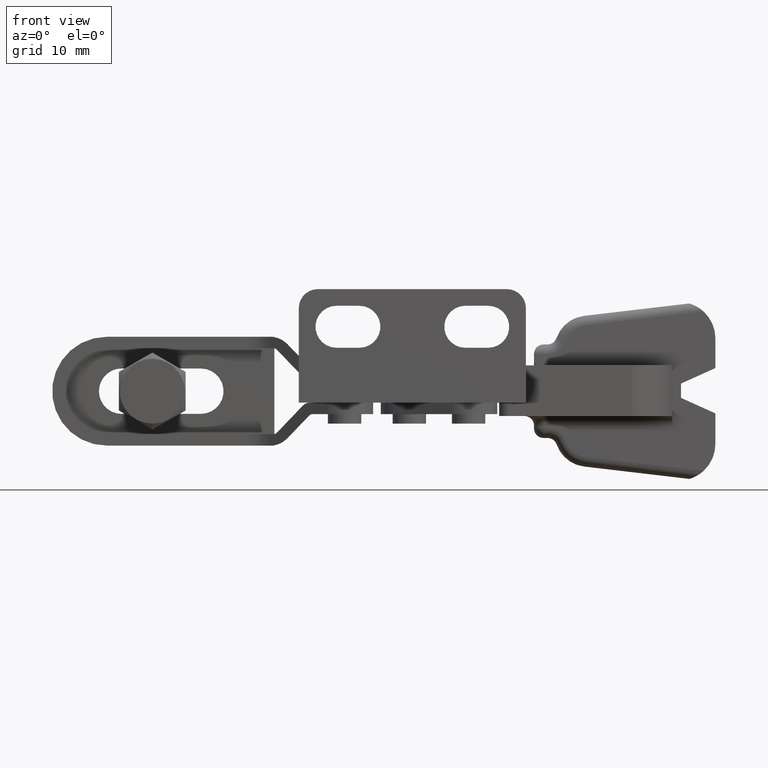
[diagram: clean part render]
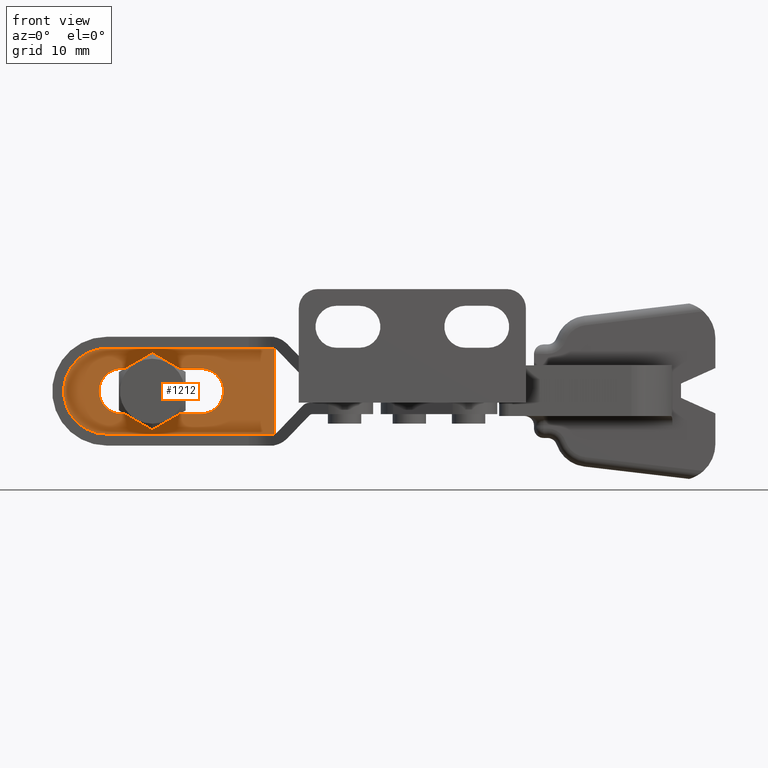
[diagram: same view with one face highlighted and labeled with its STEP entity id]
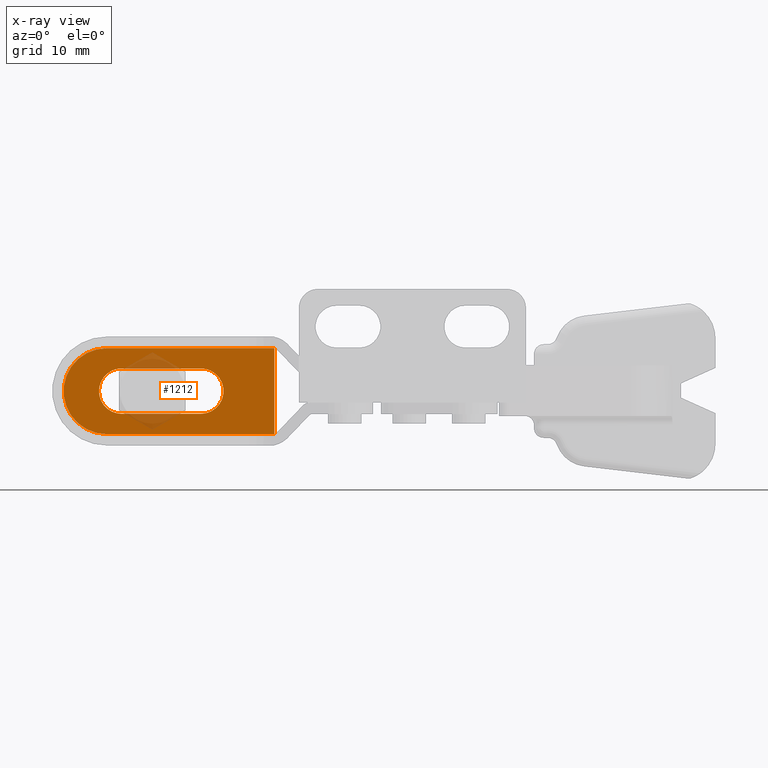
[diagram: x-ray of the same camera — body ghosted, the highlighted face saturated]
A machine part, front view. The second image highlights one B-rep face of the part: STEP entity #1212.
The next image is the same camera in x-ray: the body ghosted, the highlighted face saturated — about 7% of this face is hidden behind the body in this view.
In plain terms, the highlighted planar face has unit normal (0, -1, 0).
Its self-contained STEP definition (entity closure, byte-faithful):
#294 = VECTOR ( 'NONE', #1500, 1000.000000000000000 ) ;
#354 = VERTEX_POINT ( 'NONE', #4485 ) ;
#637 = CIRCLE ( 'NONE', #5633, 2.380000000000000300 ) ;
#687 = EDGE_CURVE ( 'NONE', #5184, #9603, #4522, .T. ) ;
#764 = VERTEX_POINT ( 'NONE', #8551 ) ;
#860 = DIRECTION ( 'NONE',  ( -1.000000000000000000, 0.0000000000000000000, 1.984105999332369700E-016 ) ) ;
#869 = CARTESIAN_POINT ( 'NONE',  ( -20.14000145548620300, 17.30000245742332200, -4.499999999998711300 ) ) ;
#1211 = CARTESIAN_POINT ( 'NONE',  ( -2.653803877730544200, 17.30000245742332200, -4.499999999998714800 ) ) ;
#1212 = ADVANCED_FACE ( 'NONE', ( #6039, #7971 ), #4010, .T. ) ;
#1297 = EDGE_CURVE ( 'NONE', #6664, #8710, #7029, .T. ) ;
#1371 = EDGE_CURVE ( 'NONE', #8710, #5184, #6855, .T. ) ;
#1395 = CARTESIAN_POINT ( 'NONE',  ( -13.98654398031854000, 17.30000245742332200, -2.380000000000000300 ) ) ;
#1413 = CARTESIAN_POINT ( 'NONE',  ( -2.653803877728941400, 17.30000245742332200, 4.499999999998713000 ) ) ;
#1500 = DIRECTION ( 'NONE',  ( 0.0000000000000000000, 0.0000000000000000000, 1.000000000000000000 ) ) ;
#1652 = ORIENTED_EDGE ( 'NONE', *, *, #4391, .F. ) ;
#1750 = ORIENTED_EDGE ( 'NONE', *, *, #1371, .F. ) ;
#1918 = ORIENTED_EDGE ( 'NONE', *, *, #9652, .T. ) ;
#2133 = VERTEX_POINT ( 'NONE', #4828 ) ;
#2204 = DIRECTION ( 'NONE',  ( -0.0000000000000000000, 1.000000000000000000, -0.0000000000000000000 ) ) ;
#2375 = LINE ( 'NONE', #6832, #294 ) ;
#2420 = VERTEX_POINT ( 'NONE', #3624 ) ;
#2670 = VECTOR ( 'NONE', #5254, 1000.000000000000000 ) ;
#2697 = EDGE_LOOP ( 'NONE', ( #7431, #1750, #9007, #9213, #5438, #1918 ) ) ;
#2850 = CARTESIAN_POINT ( 'NONE',  ( -18.56322818642262700, 17.30000245742331800, -2.380000000000000300 ) ) ;
#2859 = EDGE_CURVE ( 'NONE', #764, #9262, #637, .T. ) ;
#2958 = DIRECTION ( 'NONE',  ( 0.0000000000000000000, -1.000000000000000000, 0.0000000000000000000 ) ) ;
#3573 = EDGE_CURVE ( 'NONE', #2133, #2420, #9500, .T. ) ;
#3624 = CARTESIAN_POINT ( 'NONE',  ( -10.26322818642262500, 17.30000245742332200, 2.379999999999998600 ) ) ;
#3825 = EDGE_CURVE ( 'NONE', #354, #764, #7502, .T. ) ;
#3939 = DIRECTION ( 'NONE',  ( 0.0000000000000000000, 0.0000000000000000000, -1.000000000000000000 ) ) ;
#3952 = DIRECTION ( 'NONE',  ( 0.0000000000000000000, -1.000000000000000000, 0.0000000000000000000 ) ) ;
#3965 = CARTESIAN_POINT ( 'NONE',  ( -18.56322818642262700, 17.30000245742331800, 0.0000000000000000000 ) ) ;
#4004 = CARTESIAN_POINT ( 'NONE',  ( -20.14000145548620300, 17.30000245742332200, 4.499999999998716600 ) ) ;
#4010 = PLANE ( 'NONE',  #7952 ) ;
#4051 = EDGE_CURVE ( 'NONE', #8513, #6664, #5035, .T. ) ;
#4391 = EDGE_CURVE ( 'NONE', #9262, #2133, #8932, .T. ) ;
#4485 = CARTESIAN_POINT ( 'NONE',  ( -18.56322818642262700, 17.30000245742331800, 2.380000000000000300 ) ) ;
#4522 = CIRCLE ( 'NONE', #9497, 0.5000016941768495900 ) ;
#4534 = CARTESIAN_POINT ( 'NONE',  ( -20.14000145548620300, 17.30000245742332200, 4.499999999998716600 ) ) ;
#4708 = AXIS2_PLACEMENT_3D ( 'NONE', #3965, #3952, #3939 ) ;
#4775 = EDGE_LOOP ( 'NONE', ( #8916, #7187, #8032, #1652, #5310 ) ) ;
#4828 = CARTESIAN_POINT ( 'NONE',  ( -10.26322818642262600, 17.30000245742331400, -2.380000000000000300 ) ) ;
#4837 = CIRCLE ( 'NONE', #7963, 0.5000016941768487000 ) ;
#4910 = CARTESIAN_POINT ( 'NONE',  ( -18.56322818642262700, 17.30000245742331800, 0.0000000000000000000 ) ) ;
#4938 = VECTOR ( 'NONE', #860, 1000.000000000000000 ) ;
#5035 = LINE ( 'NONE', #869, #4938 ) ;
#5071 = CARTESIAN_POINT ( 'NONE',  ( -20.14000145548620300, 17.30000245742332200, -4.499999999998711300 ) ) ;
#5184 = VERTEX_POINT ( 'NONE', #1413 ) ;
#5254 = DIRECTION ( 'NONE',  ( 1.000000000000000000, 0.0000000000000000000, -1.984105999332187500E-016 ) ) ;
#5310 = ORIENTED_EDGE ( 'NONE', *, *, #2859, .F. ) ;
#5438 = ORIENTED_EDGE ( 'NONE', *, *, #9415, .F. ) ;
#5455 = DIRECTION ( 'NONE',  ( 0.0000000000000000000, -1.000000000000000000, 0.0000000000000000000 ) ) ;
#5490 = LINE ( 'NONE', #6671, #8254 ) ;
#5624 = VECTOR ( 'NONE', #8554, 1000.000000000000000 ) ;
#5633 = AXIS2_PLACEMENT_3D ( 'NONE', #4910, #5455, #8085 ) ;
#5661 = DIRECTION ( 'NONE',  ( 0.0000000000000000000, 0.0000000000000000000, -1.000000000000000000 ) ) ;
#5789 = CARTESIAN_POINT ( 'NONE',  ( -10.26322818642262600, 17.30000245742331800, 0.0000000000000000000 ) ) ;
#5889 = DIRECTION ( 'NONE',  ( 0.0000000000000000000, -1.000000000000000000, 0.0000000000000000000 ) ) ;
#6038 = AXIS2_PLACEMENT_3D ( 'NONE', #5789, #5889, #5661 ) ;
#6039 = FACE_BOUND ( 'NONE', #4775, .T. ) ;
#6159 = EDGE_CURVE ( 'NONE', #2420, #354, #5490, .T. ) ;
#6233 = AXIS2_PLACEMENT_3D ( 'NONE', #7791, #9505, #7193 ) ;
#6664 = VERTEX_POINT ( 'NONE', #5071 ) ;
#6671 = CARTESIAN_POINT ( 'NONE',  ( -13.98654398031854000, 17.30000245742332200, 2.379999999999998600 ) ) ;
#6702 = CARTESIAN_POINT ( 'NONE',  ( -2.563228186422624500, 17.30000245742332200, -4.491727640236449700 ) ) ;
#6767 = CARTESIAN_POINT ( 'NONE',  ( -2.653803877730544200, 17.30000245742332200, -3.999998305821864400 ) ) ;
#6832 = CARTESIAN_POINT ( 'NONE',  ( -2.563228186422624500, 17.30000245742332200, -5.699999999999998400 ) ) ;
#6855 = LINE ( 'NONE', #4534, #2670 ) ;
#7029 = CIRCLE ( 'NONE', #6233, 4.499999999998713900 ) ;
#7187 = ORIENTED_EDGE ( 'NONE', *, *, #6159, .F. ) ;
#7193 = DIRECTION ( 'NONE',  ( 0.0000000000000000000, 0.0000000000000000000, -1.000000000000000000 ) ) ;
#7391 = CARTESIAN_POINT ( 'NONE',  ( -2.653803877728941400, 17.30000245742332200, 3.999998305821864400 ) ) ;
#7406 = DIRECTION ( 'NONE',  ( -0.0000000000000000000, 1.000000000000000000, -0.0000000000000000000 ) ) ;
#7408 = DIRECTION ( 'NONE',  ( 0.0000000000000000000, 0.0000000000000000000, -1.000000000000000000 ) ) ;
#7431 = ORIENTED_EDGE ( 'NONE', *, *, #687, .F. ) ;
#7502 = CIRCLE ( 'NONE', #4708, 2.380000000000000300 ) ;
#7557 = DIRECTION ( 'NONE',  ( -4.163322235536046500E-014, 0.0000000000000000000, -1.000000000000000000 ) ) ;
#7652 = CARTESIAN_POINT ( 'NONE',  ( -13.98654398031854000, 17.30000245742332200, -5.699999999999998400 ) ) ;
#7696 = VERTEX_POINT ( 'NONE', #6702 ) ;
#7791 = CARTESIAN_POINT ( 'NONE',  ( -20.14000145548620300, 17.30000245742332200, 2.517818257012902300E-015 ) ) ;
#7952 = AXIS2_PLACEMENT_3D ( 'NONE', #7652, #2958, #8097 ) ;
#7963 = AXIS2_PLACEMENT_3D ( 'NONE', #6767, #2204, #7557 ) ;
#7971 = FACE_OUTER_BOUND ( 'NONE', #2697, .T. ) ;
#8032 = ORIENTED_EDGE ( 'NONE', *, *, #3573, .F. ) ;
#8085 = DIRECTION ( 'NONE',  ( 0.0000000000000000000, 0.0000000000000000000, -1.000000000000000000 ) ) ;
#8097 = DIRECTION ( 'NONE',  ( 0.0000000000000000000, -0.0000000000000000000, -1.000000000000000000 ) ) ;
#8254 = VECTOR ( 'NONE', #9680, 1000.000000000000000 ) ;
#8513 = VERTEX_POINT ( 'NONE', #1211 ) ;
#8551 = CARTESIAN_POINT ( 'NONE',  ( -20.94322818642263000, 17.30000245742331800, 0.0000000000000000000 ) ) ;
#8554 = DIRECTION ( 'NONE',  ( 1.000000000000000000, 0.0000000000000000000, 0.0000000000000000000 ) ) ;
#8710 = VERTEX_POINT ( 'NONE', #4004 ) ;
#8916 = ORIENTED_EDGE ( 'NONE', *, *, #3825, .F. ) ;
#8932 = LINE ( 'NONE', #1395, #5624 ) ;
#9007 = ORIENTED_EDGE ( 'NONE', *, *, #1297, .F. ) ;
#9121 = CARTESIAN_POINT ( 'NONE',  ( -2.563228186422624500, 17.30000245742332200, 4.491727640236746300 ) ) ;
#9213 = ORIENTED_EDGE ( 'NONE', *, *, #4051, .F. ) ;
#9262 = VERTEX_POINT ( 'NONE', #2850 ) ;
#9415 = EDGE_CURVE ( 'NONE', #7696, #8513, #4837, .T. ) ;
#9497 = AXIS2_PLACEMENT_3D ( 'NONE', #7391, #7406, #7408 ) ;
#9500 = CIRCLE ( 'NONE', #6038, 2.380000000000000300 ) ;
#9505 = DIRECTION ( 'NONE',  ( -0.0000000000000000000, 1.000000000000000000, -0.0000000000000000000 ) ) ;
#9603 = VERTEX_POINT ( 'NONE', #9121 ) ;
#9652 = EDGE_CURVE ( 'NONE', #7696, #9603, #2375, .T. ) ;
#9680 = DIRECTION ( 'NONE',  ( -1.000000000000000000, 0.0000000000000000000, 0.0000000000000000000 ) ) ;